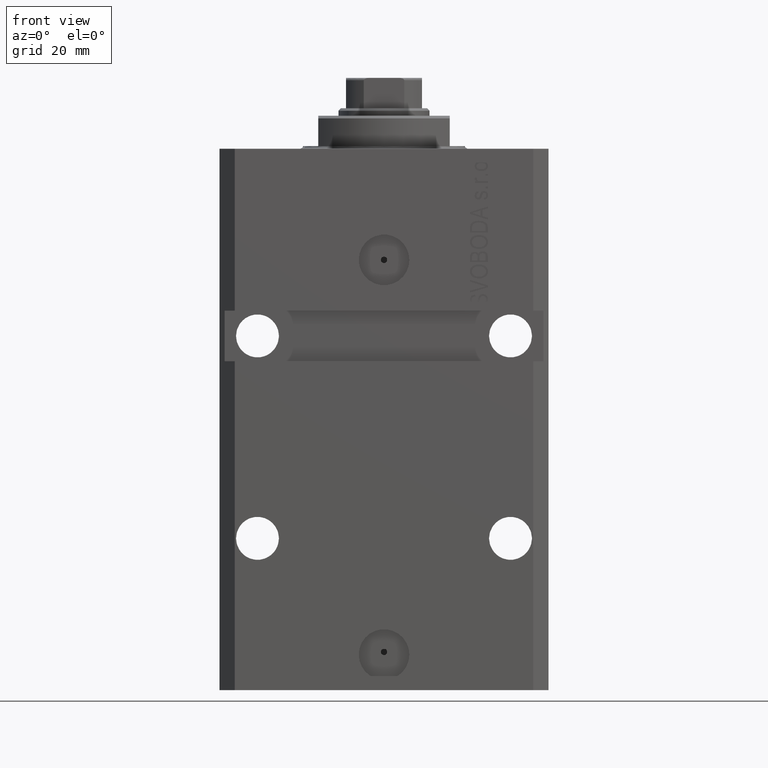
[diagram: clean part render]
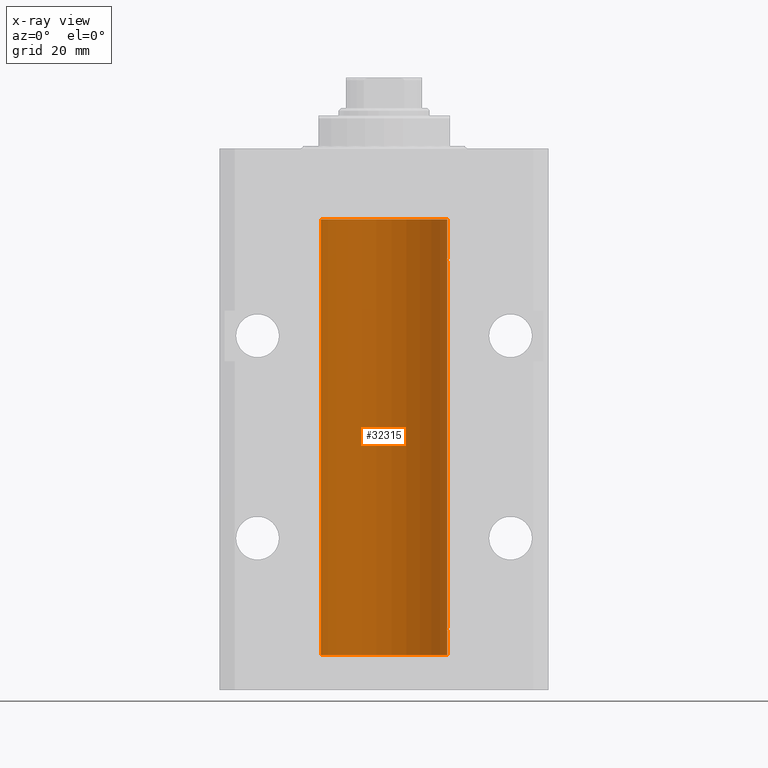
[diagram: x-ray — body ghosted, one internal face saturated and labeled with its STEP entity id]
A machine part, front view, then the same camera in x-ray: the body is ghosted and one INTERNAL B-rep face — a face not visible from any outside direction — is saturated and labeled: STEP entity #32315.
In plain terms, the highlighted cylindrical surface (partial cylindrical patch) has radius 12.5 mm, axis along (0, 0, 1).
Its self-contained STEP definition (entity closure, byte-faithful):
#669 = ORIENTED_EDGE ( 'NONE', *, *, #26248, .T. ) ;
#1432 = EDGE_CURVE ( 'NONE', #37033, #10237, #33360, .T. ) ;
#2164 = DIRECTION ( 'NONE',  ( 1.000000000000000000, 0.000000000000000000, 0.000000000000000000 ) ) ;
#2458 = CARTESIAN_POINT ( 'NONE',  ( 12.50000000000000000, 0.000000000000000000, -100.0999999999999943 ) ) ;
#2771 = ORIENTED_EDGE ( 'NONE', *, *, #1432, .T. ) ;
#3278 = CARTESIAN_POINT ( 'NONE',  ( 12.48810305280568222, 0.5461368461738485003, -94.68525466142676805 ) ) ;
#3960 = VECTOR ( 'NONE', #9952, 1000.000000000000000 ) ;
#4469 = CARTESIAN_POINT ( 'NONE',  ( 0.000000000000000000, 0.000000000000000000, -100.0999999999999943 ) ) ;
#4729 = EDGE_CURVE ( 'NONE', #18358, #20973, #38405, .T. ) ;
#6702 = CARTESIAN_POINT ( 'NONE',  ( 12.50000000000017941, 3.868073689162038701E-13, -94.37499999999640465 ) ) ;
#6767 = VERTEX_POINT ( 'NONE', #33578 ) ;
#7002 = CARTESIAN_POINT ( 'NONE',  ( 12.48436522214846711, 0.6250000000078848039, -94.99999999999923261 ) ) ;
#8561 = FACE_OUTER_BOUND ( 'NONE', #31011, .T. ) ;
#8934 = CARTESIAN_POINT ( 'NONE',  ( 12.50000000000017941, 3.868073565084946818E-13, -21.37499999999641176 ) ) ;
#9188 = VERTEX_POINT ( 'NONE', #14672 ) ;
#9243 = ORIENTED_EDGE ( 'NONE', *, *, #4729, .F. ) ;
#9361 = CARTESIAN_POINT ( 'NONE',  ( 12.49915742890631876, 0.1636982395582437522, -22.60872397847025539 ) ) ;
#9544 = CARTESIAN_POINT ( 'NONE',  ( 12.48810305280568222, 0.5461368461738448365, -21.68525466142676805 ) ) ;
#9910 = VERTEX_POINT ( 'NONE', #6702 ) ;
#9952 = DIRECTION ( 'NONE',  ( -0.000000000000000000, -0.000000000000000000, 1.000000000000000000 ) ) ;
#9971 = CARTESIAN_POINT ( 'NONE',  ( 12.50000000000000000, -1.836039810331332019E-15, -95.62500000000000000 ) ) ;
#10237 = VERTEX_POINT ( 'NONE', #9971 ) ;
#10923 = B_SPLINE_CURVE_WITH_KNOTS ( 'NONE', 3,
 ( #27818, #31456, #41487, #3278, #38525, #41710, #31233, #24634 ),
 .UNSPECIFIED., .F., .F.,
 ( 4, 2, 2, 4 ),
 ( 0.0009773924225142606621, 0.001221629287363811033, 0.001465866152213361404, 0.001954339881912461711 ),
 .UNSPECIFIED. ) ;
#10945 = CARTESIAN_POINT ( 'NONE',  ( 12.50000000000000000, 0.000000000000000000, -100.0999999999999943 ) ) ;
#11087 = CARTESIAN_POINT ( 'NONE',  ( 12.48436522214885969, 0.6250000000001505462, -95.16312747540308692 ) ) ;
#11325 = ORIENTED_EDGE ( 'NONE', *, *, #30963, .T. ) ;
#12123 = CARTESIAN_POINT ( 'NONE',  ( 12.49625698805480667, 0.3151108292486967666, -22.54593695688170385 ) ) ;
#12382 = AXIS2_PLACEMENT_3D ( 'NONE', #15585, #26044, #2164 ) ;
#12554 = CARTESIAN_POINT ( 'NONE',  ( 12.49999999999999822, 0.08262306818362555316, -22.62499999999997513 ) ) ;
#13908 = LINE ( 'NONE', #10945, #14681 ) ;
#14576 = ORIENTED_EDGE ( 'NONE', *, *, #26460, .T. ) ;
#14672 = CARTESIAN_POINT ( 'NONE',  ( 12.50000000000000000, -1.470318446642941360E-15, -22.62500000000000000 ) ) ;
#14681 = VECTOR ( 'NONE', #24797, 1000.000000000000000 ) ;
#14925 = DIRECTION ( 'NONE',  ( 0.000000000000000000, 0.000000000000000000, 1.000000000000000000 ) ) ;
#15492 = B_SPLINE_CURVE_WITH_KNOTS ( 'NONE', 3,
 ( #37285, #16808, #27045, #9544, #30899, #16591, #34527, #33619 ),
 .UNSPECIFIED., .F., .F.,
 ( 4, 2, 2, 4 ),
 ( 0.0009773924225142506875, 0.001221629287363794770, 0.001465866152213338852, 0.001954339881912434389 ),
 .UNSPECIFIED. ) ;
#15585 = CARTESIAN_POINT ( 'NONE',  ( 0.000000000000000000, 0.000000000000000000, -100.0999999999999943 ) ) ;
#15670 = CARTESIAN_POINT ( 'NONE',  ( -12.50000000000000000, 1.530808498934191521E-15, -13.99999999999999822 ) ) ;
#15936 = ORIENTED_EDGE ( 'NONE', *, *, #21355, .T. ) ;
#16591 = CARTESIAN_POINT ( 'NONE',  ( 12.49631206032075958, 0.3252904079142808214, -21.44139700214925526 ) ) ;
#16808 = CARTESIAN_POINT ( 'NONE',  ( 12.48436522214888100, 0.6249999999996762590, -21.91847339462350774 ) ) ;
#16848 = EDGE_CURVE ( 'NONE', #37033, #18358, #26179, .T. ) ;
#17236 = CARTESIAN_POINT ( 'NONE',  ( 12.48809900631782099, 0.5573988467445673001, -95.32640147935475738 ) ) ;
#17343 = VERTEX_POINT ( 'NONE', #21544 ) ;
#17544 = CARTESIAN_POINT ( 'NONE',  ( -12.50000000000000000, 1.530808498934191521E-15, -100.0999999999999943 ) ) ;
#18358 = VERTEX_POINT ( 'NONE', #17544 ) ;
#18936 = CARTESIAN_POINT ( 'NONE',  ( 12.48436522214885969, 0.6250000000001448841, -22.16312747540307271 ) ) ;
#19103 = ORIENTED_EDGE ( 'NONE', *, *, #16848, .F. ) ;
#20973 = VERTEX_POINT ( 'NONE', #15670 ) ;
#21355 = EDGE_CURVE ( 'NONE', #21564, #17343, #22120, .T. ) ;
#21544 = CARTESIAN_POINT ( 'NONE',  ( 12.50000000000000000, 0.000000000000000000, -13.99999999999999822 ) ) ;
#21564 = VERTEX_POINT ( 'NONE', #8934 ) ;
#21961 = CYLINDRICAL_SURFACE ( 'NONE', #40876, 12.50000000000000000 ) ;
#22120 = LINE ( 'NONE', #39663, #23192 ) ;
#23192 = VECTOR ( 'NONE', #38987, 1000.000000000000000 ) ;
#23213 = CARTESIAN_POINT ( 'NONE',  ( 12.49421963472024366, 0.3844519291903583103, -22.49947303647044805 ) ) ;
#24097 = EDGE_CURVE ( 'NONE', #10237, #6767, #40204, .T. ) ;
#24268 = CARTESIAN_POINT ( 'NONE',  ( 12.50000000000000000, -1.836039810331332019E-15, -95.62500000000000000 ) ) ;
#24634 = CARTESIAN_POINT ( 'NONE',  ( 12.50000000000017941, 3.868073689162038701E-13, -94.37499999999640465 ) ) ;
#24797 = DIRECTION ( 'NONE',  ( -0.000000000000000000, -0.000000000000000000, 1.000000000000000000 ) ) ;
#25609 = DIRECTION ( 'NONE',  ( -0.000000000000000000, -0.000000000000000000, 1.000000000000000000 ) ) ;
#26044 = DIRECTION ( 'NONE',  ( 0.000000000000000000, 0.000000000000000000, 1.000000000000000000 ) ) ;
#26179 = CIRCLE ( 'NONE', #12382, 12.50000000000000000 ) ;
#26248 = EDGE_CURVE ( 'NONE', #17343, #20973, #32777, .T. ) ;
#26460 = EDGE_CURVE ( 'NONE', #9910, #9188, #13908, .T. ) ;
#27045 = CARTESIAN_POINT ( 'NONE',  ( 12.48520578595314845, 0.6087855079133684955, -21.83656717509346024 ) ) ;
#27081 = ORIENTED_EDGE ( 'NONE', *, *, #38648, .T. ) ;
#27254 = DIRECTION ( 'NONE',  ( -0.000000000000000000, -0.000000000000000000, 1.000000000000000000 ) ) ;
#27818 = CARTESIAN_POINT ( 'NONE',  ( 12.48436522214846711, 0.6250000000078848039, -94.99999999999923261 ) ) ;
#29618 = CARTESIAN_POINT ( 'NONE',  ( 12.48436522214846889, 0.6250000000078781426, -21.99999999999923261 ) ) ;
#30899 = CARTESIAN_POINT ( 'NONE',  ( 12.49012055744648997, 0.5002956126655976332, -21.61641710202404454 ) ) ;
#30963 = EDGE_CURVE ( 'NONE', #9188, #42025, #35361, .T. ) ;
#31011 = EDGE_LOOP ( 'NONE', ( #9243, #19103, #2771, #41674, #38189, #14576, #11325, #27081, #15936, #669 ) ) ;
#31233 = CARTESIAN_POINT ( 'NONE',  ( 12.49999999999999822, 0.1631389616600901760, -94.37500000000024158 ) ) ;
#31456 = CARTESIAN_POINT ( 'NONE',  ( 12.48436522214888100, 0.6249999999996834754, -94.91847339462351840 ) ) ;
#32188 = CARTESIAN_POINT ( 'NONE',  ( 0.000000000000000000, 0.000000000000000000, -13.99999999999999822 ) ) ;
#32315 = ADVANCED_FACE ( 'NONE', ( #8561 ), #21961, .F. ) ;
#32777 = CIRCLE ( 'NONE', #36423, 12.50000000000000000 ) ;
#33360 = LINE ( 'NONE', #2458, #3960 ) ;
#33441 = CARTESIAN_POINT ( 'NONE',  ( 12.50000000000000000, -1.470318446642941360E-15, -22.62500000000000000 ) ) ;
#33578 = CARTESIAN_POINT ( 'NONE',  ( 12.48436522214846711, 0.6250000000078848039, -94.99999999999923261 ) ) ;
#33619 = CARTESIAN_POINT ( 'NONE',  ( 12.50000000000017941, 3.868073565084946818E-13, -21.37499999999641176 ) ) ;
#33799 = VECTOR ( 'NONE', #27254, 1000.000000000000000 ) ;
#33967 = CARTESIAN_POINT ( 'NONE',  ( 12.48436522214846889, 0.6250000000078781426, -21.99999999999923261 ) ) ;
#34504 = CARTESIAN_POINT ( 'NONE',  ( 12.49999999999999822, 0.08262306818362624705, -95.62499999999998579 ) ) ;
#34527 = CARTESIAN_POINT ( 'NONE',  ( 12.49999999999999112, 0.1631389616600879555, -21.37500000000019185 ) ) ;
#34733 = CARTESIAN_POINT ( 'NONE',  ( 12.49421963472024721, 0.3844519291903572555, -95.49947303647047647 ) ) ;
#35361 = B_SPLINE_CURVE_WITH_KNOTS ( 'NONE', 3,
 ( #33441, #12554, #9361, #12123, #23213, #43944, #18936, #29618 ),
 .UNSPECIFIED., .F., .F.,
 ( 4, 2, 2, 4 ),
 ( 2.576359803311334014E-18, 0.0002443481056285645150, 0.0004886962112571264279, 0.0009773924225142506875 ),
 .UNSPECIFIED. ) ;
#36423 = AXIS2_PLACEMENT_3D ( 'NONE', #32188, #14925, #42675 ) ;
#37033 = VERTEX_POINT ( 'NONE', #37366 ) ;
#37285 = CARTESIAN_POINT ( 'NONE',  ( 12.48436522214846889, 0.6250000000078781426, -21.99999999999923261 ) ) ;
#37366 = CARTESIAN_POINT ( 'NONE',  ( 12.50000000000000000, 0.000000000000000000, -100.0999999999999943 ) ) ;
#37951 = CARTESIAN_POINT ( 'NONE',  ( -12.50000000000000000, 1.530808498934191521E-15, -100.0999999999999943 ) ) ;
#38160 = CARTESIAN_POINT ( 'NONE',  ( 12.49915742890631876, 0.1636982395582385896, -95.60872397847028026 ) ) ;
#38189 = ORIENTED_EDGE ( 'NONE', *, *, #42125, .T. ) ;
#38405 = LINE ( 'NONE', #37951, #33799 ) ;
#38525 = CARTESIAN_POINT ( 'NONE',  ( 12.49012055744648997, 0.5002956126656082914, -94.61641710202405875 ) ) ;
#38648 = EDGE_CURVE ( 'NONE', #42025, #21564, #15492, .T. ) ;
#38987 = DIRECTION ( 'NONE',  ( -0.000000000000000000, -0.000000000000000000, 1.000000000000000000 ) ) ;
#39500 = DIRECTION ( 'NONE',  ( 1.000000000000000000, 0.000000000000000000, 0.000000000000000000 ) ) ;
#39663 = CARTESIAN_POINT ( 'NONE',  ( 12.50000000000000000, 0.000000000000000000, -100.0999999999999943 ) ) ;
#40204 = B_SPLINE_CURVE_WITH_KNOTS ( 'NONE', 3,
 ( #24268, #34504, #38160, #42244, #34733, #17236, #11087, #7002 ),
 .UNSPECIFIED., .F., .F.,
 ( 4, 2, 2, 4 ),
 ( 1.784246692340212412E-18, 0.0002443481056285665750, 0.0004886962112571313068, 0.0009773924225142606621 ),
 .UNSPECIFIED. ) ;
#40876 = AXIS2_PLACEMENT_3D ( 'NONE', #4469, #25609, #39500 ) ;
#41487 = CARTESIAN_POINT ( 'NONE',  ( 12.48520578595314845, 0.6087855079133740466, -94.83656717509346379 ) ) ;
#41674 = ORIENTED_EDGE ( 'NONE', *, *, #24097, .T. ) ;
#41710 = CARTESIAN_POINT ( 'NONE',  ( 12.49631206032076136, 0.3252904079142934779, -94.44139700214928723 ) ) ;
#42025 = VERTEX_POINT ( 'NONE', #33967 ) ;
#42125 = EDGE_CURVE ( 'NONE', #6767, #9910, #10923, .T. ) ;
#42244 = CARTESIAN_POINT ( 'NONE',  ( 12.49625698805481022, 0.3151108292486944906, -95.54593695688171806 ) ) ;
#42675 = DIRECTION ( 'NONE',  ( 1.000000000000000000, 0.000000000000000000, 0.000000000000000000 ) ) ;
#43944 = CARTESIAN_POINT ( 'NONE',  ( 12.48809900631782099, 0.5573988467445639694, -22.32640147935474317 ) ) ;